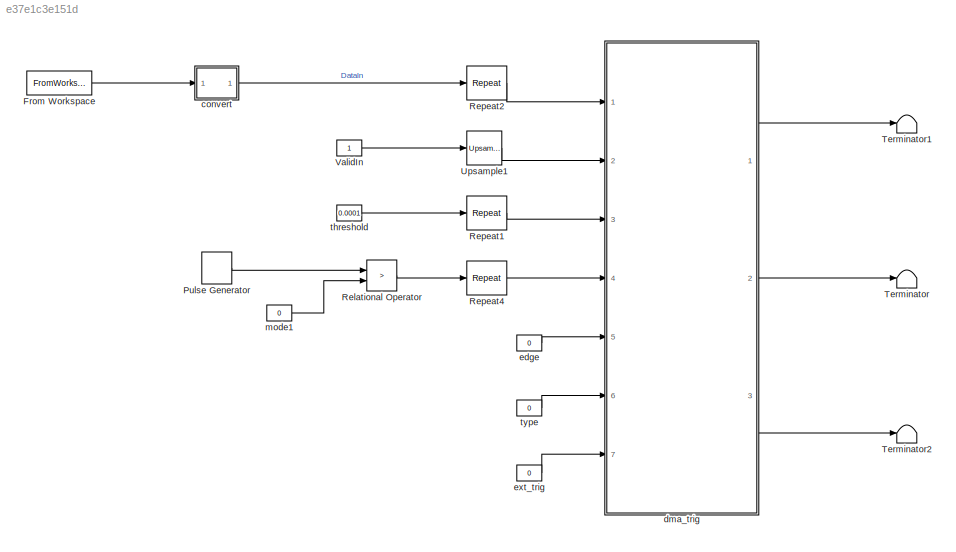
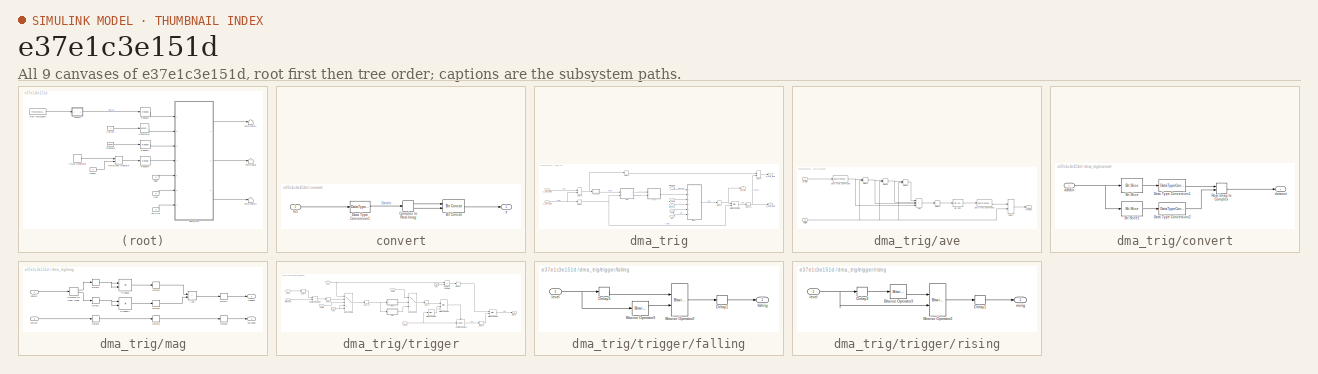
[diagram: thumbnail index - all 9 canvases of the model, root first then tree order]
MODEL slx_e37e1c3e151d
KIND model
CONFIG AbsTol = auto
CONFIG EnableMultiTasking = off
CONFIG FixedStep = auto
CONFIG MaxStep = auto
CONFIG MinStep = auto
CONFIG RelTol = 1e-3
CONFIG SampleTimeConstraint = Unconstrained
CONFIG SolverName = FixedStepDiscrete
CONFIG StartTime = 0.0
CONFIG StopTime = (1/fs)*2457600
WORKSPACE source: mxarray member
WORKSPACE OptOut = 0
BLOCK [FromWorkspace] From Workspace
  SampleTime = 1/fs
  VariableName = simin
BLOCK [DiscretePulseGenerator] Pulse Generator
  Period = 10e3
  PhaseDelay = 50
  Ports = [0, 1]
  PulseWidth = 256
  SampleTime = 1/fs
BLOCK [RelationalOperator] Relational Operator
  InputSameDT = off
  Operator = >
  OutDataTypeStr = boolean
  Ports = [2, 1]
BLOCK [Reference] Repeat1  REF=dspsigops/Repeat
  Ports = [1, 1]
  SourceBlock = dspsigops/Repeat
  SourceProductBaseCode = DS
  SourceType = Repeat
  UserDataPersistent = on
BLOCK [Reference] Repeat2  REF=dspsigops/Repeat
  Ports = [1, 1]
  SourceBlock = dspsigops/Repeat
  SourceProductBaseCode = DS
  SourceType = Repeat
  UserDataPersistent = on
BLOCK [Reference] Repeat4  REF=dspsigops/Repeat
  Ports = [1, 1]
  SourceBlock = dspsigops/Repeat
  SourceProductBaseCode = DS
  SourceType = Repeat
  UserDataPersistent = on
BLOCK [Terminator] Terminator
BLOCK [Terminator] Terminator1
BLOCK [Terminator] Terminator2
BLOCK [Reference] Upsample1  REF=dspsigops/Upsample
  Ports = [1, 1]
  SourceBlock = dspsigops/Upsample
  SourceProductBaseCode = DS
  SourceType = Upsample
  UserDataPersistent = on
BLOCK [Constant] ValidIn
  OutDataTypeStr = boolean
  SampleTime = 1/fs
BLOCK [SubSystem] convert
  Ports = [1, 1]
  RequestExecContextInheritance = off
BLOCK [Reference] convert/Bit Concat  REF=hdlsllib/Logic and Bit
Operations/Bit Concat
  Ports = [2, 1]
  SourceBlock = hdlsllib/Logic and Bit\nOperations/Bit Concat
  SourceProductBaseCode = SL
  SourceType = Bit Concat
BLOCK [ComplexToRealImag] convert/Complex to Real-Imag
  Ports = [1, 2]
BLOCK [DataTypeConversion] convert/Data Type Conversion1
  OutDataTypeStr = fixdt(1,16,15)
  RndMeth = Floor
  SaturateOnIntegerOverflow = off
BLOCK [Inport] convert/In1
BLOCK [Outport] convert/y
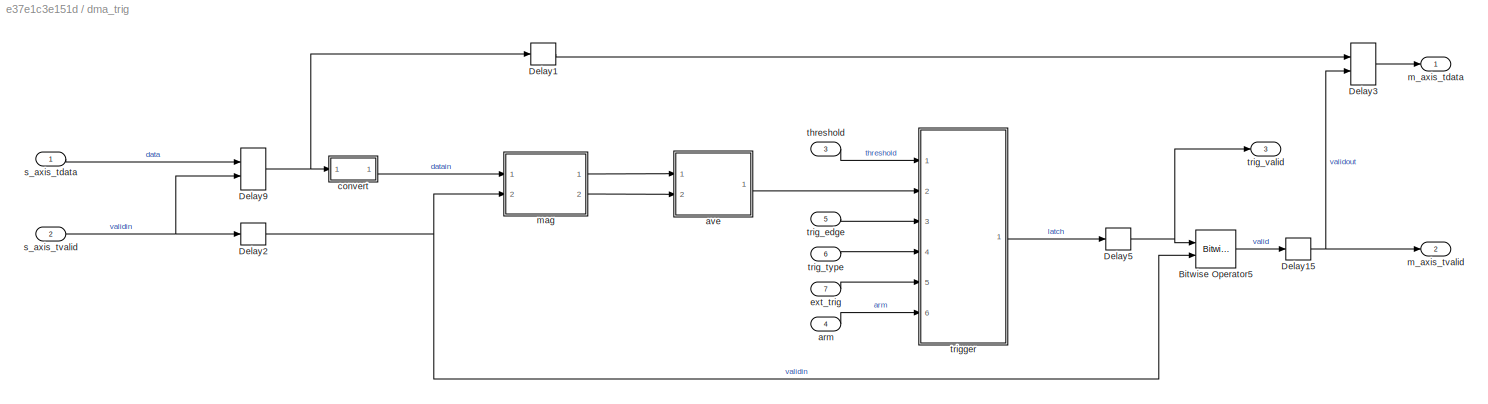
BLOCK [SubSystem] dma_trig
  MinMaxOverflowLogging = MinMaxAndOverflow
  Ports = [7, 3]
  RequestExecContextInheritance = off
  TreatAsAtomicUnit = on
BLOCK [Reference] dma_trig/Bitwise Operator5  REF=simulink/Logic and Bit
Operations/Bitwise
Operator
  Ports = [2, 1]
  SourceBlock = simulink/Logic and Bit\nOperations/Bitwise\nOperator
  SourceProductBaseCode = SL
  SourceType = Bitwise Operator
BLOCK [Delay] dma_trig/Delay1
  DelayLength = 1
  InitialCondition = 0
  InputPortMap = u0
  Ports = [1, 1]
BLOCK [Delay] dma_trig/Delay15
  DelayLength = 1
  InitialCondition = 0
  InputPortMap = u0
  Ports = [1, 1]
BLOCK [Delay] dma_trig/Delay2
  DelayLength = 1
  InitialCondition = 0
  InputPortMap = u0
  Ports = [1, 1]
BLOCK [Delay] dma_trig/Delay3
  DelayLength = 1
  InitialCondition = 0
  InputPortMap = u0,e6
  Ports = [2, 1]
  ShowEnablePort = on
BLOCK [Delay] dma_trig/Delay5
  DelayLength = 1
  InitialCondition = 0
  InputPortMap = u0
  Ports = [1, 1]
BLOCK [Delay] dma_trig/Delay9
  DelayLength = 1
  InitialCondition = 0
  InputPortMap = u0,e6
  Ports = [2, 1]
  ShowEnablePort = on
BLOCK [Inport] dma_trig/arm
  NameLocation = top
  Port = 4
BLOCK [SubSystem] dma_trig/ave
  Ports = [2, 1]
  RequestExecContextInheritance = off
BLOCK [Sum] dma_trig/ave/Add
  IconShape = rectangular
  Inputs = ++++
  Ports = [4, 1]
BLOCK [Reference] dma_trig/ave/Bit Shift  REF=hdlsllib/Logic and Bit
Operations/Bit Shift
  Ports = [1, 1]
  SourceBlock = hdlsllib/Logic and Bit\nOperations/Bit Shift
  SourceProductBaseCode = SL
  SourceType = Bit Shift
BLOCK [DataTypeConversion] dma_trig/ave/Data Type Conversion
  OutDataTypeStr = fixdt(0,32,30)
  RndMeth = Floor
  SaturateOnIntegerOverflow = off
BLOCK [DataTypeConversion] dma_trig/ave/Data Type Conversion1
  OutDataTypeStr = fixdt(0,32,30)
  RndMeth = Floor
  SaturateOnIntegerOverflow = off
BLOCK [Delay] dma_trig/ave/Delay1
  DelayLength = 1
  InitialCondition = 0
  InputPortMap = u0,e6
  Ports = [2, 1]
  ShowEnablePort = on
BLOCK [Delay] dma_trig/ave/Delay2
  DelayLength = 1
  InitialCondition = 0
  InputPortMap = u0,e6
  Ports = [2, 1]
  ShowEnablePort = on
BLOCK [Delay] dma_trig/ave/Delay3
  DelayLength = 1
  InitialCondition = 0
  InputPortMap = u0,e6
  Ports = [2, 1]
  ShowEnablePort = on
BLOCK [Delay] dma_trig/ave/Delay4
  DelayLength = 1
  InitialCondition = 0
  InputPortMap = u0,e6
  Ports = [2, 1]
  ShowEnablePort = on
BLOCK [Delay] dma_trig/ave/Delay6
  DelayLength = 4
  InitialCondition = 0
  InputPortMap = u0
  Ports = [1, 1]
BLOCK [Inport] dma_trig/ave/magin
BLOCK [Outport] dma_trig/ave/magout
BLOCK [Inport] dma_trig/ave/validin
  Port = 2
BLOCK [SubSystem] dma_trig/convert
  Ports = [1, 1]
  RequestExecContextInheritance = off
BLOCK [Reference] dma_trig/convert/Bit Slice  REF=hdlsllib/Logic and Bit
Operations/Bit Slice
  Ports = [1, 1]
  SourceBlock = hdlsllib/Logic and Bit\nOperations/Bit Slice
  SourceProductBaseCode = SL
  SourceType = Bit Slice
BLOCK [Reference] dma_trig/convert/Bit Slice1  REF=hdlsllib/Logic and Bit
Operations/Bit Slice
  Ports = [1, 1]
  SourceBlock = hdlsllib/Logic and Bit\nOperations/Bit Slice
  SourceProductBaseCode = SL
  SourceType = Bit Slice
BLOCK [DataTypeConversion] dma_trig/convert/Data Type Conversion1
  ConvertRealWorld = Stored Integer (SI)
  OutDataTypeStr = fixdt(1,16,15)
  RndMeth = Floor
  SaturateOnIntegerOverflow = off
BLOCK [DataTypeConversion] dma_trig/convert/Data Type Conversion2
  ConvertRealWorld = Stored Integer (SI)
  OutDataTypeStr = fixdt(1,16,15)
  RndMeth = Floor
  SaturateOnIntegerOverflow = off
BLOCK [RealImagToComplex] dma_trig/convert/Real-Imag to Complex
  Ports = [2, 1]
BLOCK [Inport] dma_trig/convert/datain
BLOCK [Outport] dma_trig/convert/dataout
BLOCK [Inport] dma_trig/ext_trig
  NameLocation = top
  Port = 7
BLOCK [Outport] dma_trig/m_axis_tdata
  VectorParamsAs1DForOutWhenUnconnected = off
BLOCK [Outport] dma_trig/m_axis_tvalid
  Port = 2
  VectorParamsAs1DForOutWhenUnconnected = off
BLOCK [SubSystem] dma_trig/mag
  Ports = [2, 2]
  RequestExecContextInheritance = off
BLOCK [Sum] dma_trig/mag/Add
  IconShape = rectangular
  Ports = [2, 1]
BLOCK [ComplexToRealImag] dma_trig/mag/Complex to Real-Imag
  Ports = [1, 2]
BLOCK [Delay] dma_trig/mag/Delay1
  InitialCondition = 0
  InputPortMap = u0
  Ports = [1, 1]
BLOCK [Delay] dma_trig/mag/Delay2
  InitialCondition = 0
  InputPortMap = u0
  Ports = [1, 1]
BLOCK [Delay] dma_trig/mag/Delay3
  InitialCondition = 0
  InputPortMap = u0
  Ports = [1, 1]
BLOCK [Delay] dma_trig/mag/Delay4
  InitialCondition = 0
  InputPortMap = u0
  Ports = [1, 1]
BLOCK [Delay] dma_trig/mag/Delay5
  InitialCondition = 0
  InputPortMap = u0
  Ports = [1, 1]
BLOCK [Delay] dma_trig/mag/Delay6
  InitialCondition = 0
  InputPortMap = u0
  Ports = [1, 1]
BLOCK [Delay] dma_trig/mag/Delay7
  DelayLength = 1
  InitialCondition = 0
  InputPortMap = u0
  Ports = [1, 1]
BLOCK [Delay] dma_trig/mag/Delay8
  DelayLength = 1
  InitialCondition = 0
  InputPortMap = u0
  Ports = [1, 1]
BLOCK [Product] dma_trig/mag/Product
  Ports = [2, 1]
BLOCK [Product] dma_trig/mag/Product1
  Ports = [2, 1]
BLOCK [Inport] dma_trig/mag/datain
BLOCK [Outport] dma_trig/mag/magout
BLOCK [Inport] dma_trig/mag/validin
  Port = 2
BLOCK [Outport] dma_trig/mag/validout
  Port = 2
BLOCK [Inport] dma_trig/s_axis_tdata
  NameLocation = top
  OutDataTypeStr = uint32
BLOCK [Inport] dma_trig/s_axis_tvalid
  NameLocation = top
  Port = 2
BLOCK [Inport] dma_trig/threshold
  NameLocation = top
  Port = 3
BLOCK [Inport] dma_trig/trig_edge
  NameLocation = top
  Port = 5
BLOCK [Inport] dma_trig/trig_type
  NameLocation = top
  Port = 6
BLOCK [Outport] dma_trig/trig_valid
  Port = 3
  VectorParamsAs1DForOutWhenUnconnected = off
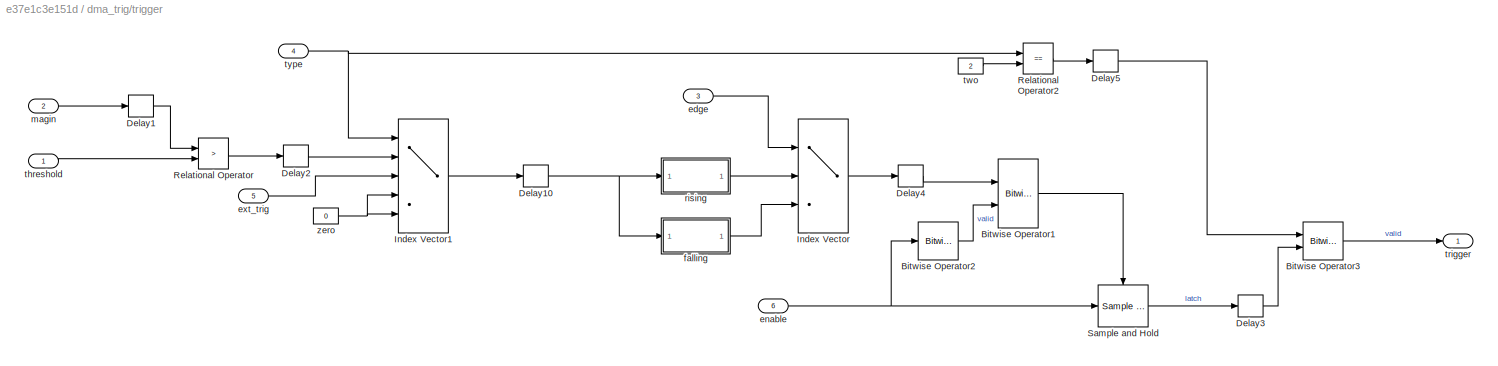
BLOCK [SubSystem] dma_trig/trigger
  Ports = [6, 1]
  RequestExecContextInheritance = off
BLOCK [Reference] dma_trig/trigger/Bitwise Operator1  REF=simulink/Logic and Bit
Operations/Bitwise
Operator
  Ports = [2, 1]
  SourceBlock = simulink/Logic and Bit\nOperations/Bitwise\nOperator
  SourceProductBaseCode = SL
  SourceType = Bitwise Operator
BLOCK [Reference] dma_trig/trigger/Bitwise Operator2  REF=simulink/Logic and Bit
Operations/Bitwise
Operator
  Ports = [1, 1]
  SourceBlock = simulink/Logic and Bit\nOperations/Bitwise\nOperator
  SourceProductBaseCode = SL
  SourceType = Bitwise Operator
BLOCK [Reference] dma_trig/trigger/Bitwise Operator3  REF=simulink/Logic and Bit
Operations/Bitwise
Operator
  Ports = [2, 1]
  SourceBlock = simulink/Logic and Bit\nOperations/Bitwise\nOperator
  SourceProductBaseCode = SL
  SourceType = Bitwise Operator
BLOCK [Delay] dma_trig/trigger/Delay1
  DelayLength = 1
  InitialCondition = 0
  InputPortMap = u0
  Ports = [1, 1]
BLOCK [Delay] dma_trig/trigger/Delay10
  DelayLength = 1
  InitialCondition = 0
  InputPortMap = u0
  Ports = [1, 1]
BLOCK [Delay] dma_trig/trigger/Delay2
  DelayLength = 1
  InitialCondition = 0
  InputPortMap = u0
  Ports = [1, 1]
BLOCK [Delay] dma_trig/trigger/Delay3
  DelayLength = 1
  InitialCondition = 0
  InputPortMap = u0
  Ports = [1, 1]
BLOCK [Delay] dma_trig/trigger/Delay4
  DelayLength = 1
  InitialCondition = 0
  InputPortMap = u0
  Ports = [1, 1]
BLOCK [Delay] dma_trig/trigger/Delay5
  DelayLength = 1
  InitialCondition = 0
  InputPortMap = u0
  Ports = [1, 1]
BLOCK [MultiPortSwitch] dma_trig/trigger/Index Vector
  DataPortOrder = Zero-based contiguous
  InputSameDT = off
  Inputs = 2
  Ports = [3, 1]
  SaturateOnIntegerOverflow = off
  zeroidx = on
BLOCK [MultiPortSwitch] dma_trig/trigger/Index Vector1
  DataPortOrder = Zero-based contiguous
  InputSameDT = off
  Inputs = 4
  Ports = [5, 1]
  SaturateOnIntegerOverflow = off
  zeroidx = on
BLOCK [RelationalOperator] dma_trig/trigger/Relational Operator
  InputSameDT = off
  Operator = >
  OutDataTypeStr = boolean
  Ports = [2, 1]
BLOCK [RelationalOperator] dma_trig/trigger/Relational Operator2
  InputSameDT = off
  Operator = ==
  OutDataTypeStr = boolean
  Ports = [2, 1]
BLOCK [Reference] dma_trig/trigger/Sample and Hold  REF=dspsigops/Sample
and Hold
  Ports = [1, 1, 0, 1]
  SourceBlock = dspsigops/Sample\nand Hold
  SourceProductBaseCode = DS
  SourceType = Sample and Hold
BLOCK [Inport] dma_trig/trigger/edge
  Port = 3
BLOCK [Inport] dma_trig/trigger/enable
  Port = 6
BLOCK [Inport] dma_trig/trigger/ext_trig
  Port = 5
BLOCK [SubSystem] dma_trig/trigger/falling
  Ports = [1, 1]
  RequestExecContextInheritance = off
BLOCK [Reference] dma_trig/trigger/falling/Bitwise Operator2  REF=simulink/Logic and Bit
Operations/Bitwise
Operator
  Ports = [2, 1]
  SourceBlock = simulink/Logic and Bit\nOperations/Bitwise\nOperator
  SourceProductBaseCode = SL
  SourceType = Bitwise Operator
BLOCK [Reference] dma_trig/trigger/falling/Bitwise Operator3  REF=simulink/Logic and Bit
Operations/Bitwise
Operator
  Ports = [1, 1]
  SourceBlock = simulink/Logic and Bit\nOperations/Bitwise\nOperator
  SourceProductBaseCode = SL
  SourceType = Bitwise Operator
BLOCK [Delay] dma_trig/trigger/falling/Delay1
  DelayLength = 1
  InitialCondition = 0
  InputPortMap = u0
  Ports = [1, 1]
BLOCK [Delay] dma_trig/trigger/falling/Delay3
  DelayLength = 1
  InitialCondition = 0
  InputPortMap = u0
  Ports = [1, 1]
BLOCK [Outport] dma_trig/trigger/falling/falling
BLOCK [Inport] dma_trig/trigger/falling/level
BLOCK [Inport] dma_trig/trigger/magin
  Port = 2
BLOCK [SubSystem] dma_trig/trigger/rising
  Ports = [1, 1]
  RequestExecContextInheritance = off
BLOCK [Reference] dma_trig/trigger/rising/Bitwise Operator2  REF=simulink/Logic and Bit
Operations/Bitwise
Operator
  Ports = [2, 1]
  SourceBlock = simulink/Logic and Bit\nOperations/Bitwise\nOperator
  SourceProductBaseCode = SL
  SourceType = Bitwise Operator
BLOCK [Reference] dma_trig/trigger/rising/Bitwise Operator3  REF=simulink/Logic and Bit
Operations/Bitwise
Operator
  Ports = [1, 1]
  SourceBlock = simulink/Logic and Bit\nOperations/Bitwise\nOperator
  SourceProductBaseCode = SL
  SourceType = Bitwise Operator
BLOCK [Delay] dma_trig/trigger/rising/Delay1
  DelayLength = 1
  InitialCondition = 0
  InputPortMap = u0
  Ports = [1, 1]
BLOCK [Delay] dma_trig/trigger/rising/Delay3
  DelayLength = 1
  InitialCondition = 0
  InputPortMap = u0
  Ports = [1, 1]
BLOCK [Inport] dma_trig/trigger/rising/level
BLOCK [Outport] dma_trig/trigger/rising/rising
BLOCK [Inport] dma_trig/trigger/threshold
BLOCK [Outport] dma_trig/trigger/trigger
BLOCK [Constant] dma_trig/trigger/two
  OutDataTypeStr = fixdt(0,2,0)
  SampleTime = -1
  Value = 2
BLOCK [Inport] dma_trig/trigger/type
  Port = 4
BLOCK [Constant] dma_trig/trigger/zero
  OutDataTypeStr = fixdt(0,2,0)
  SampleTime = -1
  Value = 0
BLOCK [Constant] edge
  OutDataTypeStr = fixdt(0,1,0)
  SampleTime = 1/clk
  Value = 0
BLOCK [Constant] ext_trig
  OutDataTypeStr = boolean
  SampleTime = 1/clk
  Value = 0
BLOCK [Constant] mode1
  SampleTime = 1/fs
  Value = 0
BLOCK [Constant] threshold
  OutDataTypeStr = fixdt(0,32,30)
  SampleTime = 1/fs
  Value = 0.0001
BLOCK [Constant] type
  OutDataTypeStr = fixdt(0,2,0)
  SampleTime = 1/clk
  Value = 0
LINE From Workspace:1 -> convert:1
LINE Pulse Generator:1 -> Relational Operator:1
LINE Relational Operator:1 -> Repeat4:1
LINE Repeat1:1 -> dma_trig:3
LINE Repeat2:1 -> dma_trig:1
LINE Repeat4:1 -> dma_trig:4
LINE Upsample1:1 -> dma_trig:2
LINE ValidIn:1 -> Upsample1:1
LINE convert/Bit Concat:1 -> convert/y:1
LINE convert/Complex to Real-Imag:1 -> convert/Bit Concat:1
LINE convert/Complex to Real-Imag:2 -> convert/Bit Concat:2
LINE convert/Data Type Conversion1:1 -> convert/Complex to Real-Imag:1
LINE convert/In1:1 -> convert/Data Type Conversion1:1
LINE convert:1 -> Repeat2:1
LINE dma_trig/Bitwise Operator5:1 -> dma_trig/Delay15:1
NET dma_trig/Delay15:1 -> dma_trig/Delay3:2, dma_trig/m_axis_tvalid:1
LINE dma_trig/Delay1:1 -> dma_trig/Delay3:1
NET dma_trig/Delay2:1 -> dma_trig/Bitwise Operator5:2, dma_trig/mag:2
LINE dma_trig/Delay3:1 -> dma_trig/m_axis_tdata:1
NET dma_trig/Delay5:1 -> dma_trig/Bitwise Operator5:1, dma_trig/trig_valid:1
NET dma_trig/Delay9:1 -> dma_trig/Delay1:1, dma_trig/convert:1
LINE dma_trig/arm:1 -> dma_trig/trigger:6
LINE dma_trig/ave/Add:1 -> dma_trig/ave/Delay6:1
LINE dma_trig/ave/Bit Shift:1 -> dma_trig/ave/Data Type Conversion1:1
LINE dma_trig/ave/Data Type Conversion1:1 -> dma_trig/ave/Delay1:1
NET dma_trig/ave/Data Type Conversion:1 -> dma_trig/ave/Add:4, dma_trig/ave/Delay2:1
LINE dma_trig/ave/Delay1:1 -> dma_trig/ave/magout:1
NET dma_trig/ave/Delay2:1 -> dma_trig/ave/Add:3, dma_trig/ave/Delay3:1
NET dma_trig/ave/Delay3:1 -> dma_trig/ave/Add:2, dma_trig/ave/Delay4:1
LINE dma_trig/ave/Delay4:1 -> dma_trig/ave/Add:1
LINE dma_trig/ave/Delay6:1 -> dma_trig/ave/Bit Shift:1
LINE dma_trig/ave/magin:1 -> dma_trig/ave/Data Type Conversion:1
NET dma_trig/ave/validin:1 -> dma_trig/ave/Delay1:2, dma_trig/ave/Delay2:2, dma_trig/ave/Delay3:2, dma_trig/ave/Delay4:2
LINE dma_trig/ave:1 -> dma_trig/trigger:2
LINE dma_trig/convert/Bit Slice1:1 -> dma_trig/convert/Data Type Conversion2:1
LINE dma_trig/convert/Bit Slice:1 -> dma_trig/convert/Data Type Conversion1:1
LINE dma_trig/convert/Data Type Conversion1:1 -> dma_trig/convert/Real-Imag to Complex:1
LINE dma_trig/convert/Data Type Conversion2:1 -> dma_trig/convert/Real-Imag to Complex:2
LINE dma_trig/convert/Real-Imag to Complex:1 -> dma_trig/convert/dataout:1
NET dma_trig/convert/datain:1 -> dma_trig/convert/Bit Slice1:1, dma_trig/convert/Bit Slice:1
LINE dma_trig/convert:1 -> dma_trig/mag:1
LINE dma_trig/ext_trig:1 -> dma_trig/trigger:5
LINE dma_trig/mag/Add:1 -> dma_trig/mag/Delay7:1
LINE dma_trig/mag/Complex to Real-Imag:1 -> dma_trig/mag/Delay4:1
LINE dma_trig/mag/Complex to Real-Imag:2 -> dma_trig/mag/Delay1:1
NET dma_trig/mag/Delay1:1 -> dma_trig/mag/Product1:1, dma_trig/mag/Product1:2
LINE dma_trig/mag/Delay2:1 -> dma_trig/mag/Delay6:1
LINE dma_trig/mag/Delay3:1 -> dma_trig/mag/Add:1
NET dma_trig/mag/Delay4:1 -> dma_trig/mag/Product:1, dma_trig/mag/Product:2
LINE dma_trig/mag/Delay5:1 -> dma_trig/mag/Add:2
LINE dma_trig/mag/Delay6:1 -> dma_trig/mag/Delay8:1
LINE dma_trig/mag/Delay7:1 -> dma_trig/mag/magout:1
LINE dma_trig/mag/Delay8:1 -> dma_trig/mag/validout:1
LINE dma_trig/mag/Product1:1 -> dma_trig/mag/Delay5:1
LINE dma_trig/mag/Product:1 -> dma_trig/mag/Delay3:1
LINE dma_trig/mag/datain:1 -> dma_trig/mag/Complex to Real-Imag:1
LINE dma_trig/mag/validin:1 -> dma_trig/mag/Delay2:1
LINE dma_trig/mag:1 -> dma_trig/ave:1
LINE dma_trig/mag:2 -> dma_trig/ave:2
LINE dma_trig/s_axis_tdata:1 -> dma_trig/Delay9:1
NET dma_trig/s_axis_tvalid:1 -> dma_trig/Delay2:1, dma_trig/Delay9:2
LINE dma_trig/threshold:1 -> dma_trig/trigger:1
LINE dma_trig/trig_edge:1 -> dma_trig/trigger:3
LINE dma_trig/trig_type:1 -> dma_trig/trigger:4
LINE dma_trig/trigger/Bitwise Operator1:1 -> dma_trig/trigger/Sample and Hold:trigger
LINE dma_trig/trigger/Bitwise Operator2:1 -> dma_trig/trigger/Bitwise Operator1:2
LINE dma_trig/trigger/Bitwise Operator3:1 -> dma_trig/trigger/trigger:1
NET dma_trig/trigger/Delay10:1 -> dma_trig/trigger/falling:1, dma_trig/trigger/rising:1
LINE dma_trig/trigger/Delay1:1 -> dma_trig/trigger/Relational Operator:1
LINE dma_trig/trigger/Delay2:1 -> dma_trig/trigger/Index Vector1:2
LINE dma_trig/trigger/Delay3:1 -> dma_trig/trigger/Bitwise Operator3:2
LINE dma_trig/trigger/Delay4:1 -> dma_trig/trigger/Bitwise Operator1:1
LINE dma_trig/trigger/Delay5:1 -> dma_trig/trigger/Bitwise Operator3:1
LINE dma_trig/trigger/Index Vector1:1 -> dma_trig/trigger/Delay10:1
LINE dma_trig/trigger/Index Vector:1 -> dma_trig/trigger/Delay4:1
LINE dma_trig/trigger/Relational Operator2:1 -> dma_trig/trigger/Delay5:1
LINE dma_trig/trigger/Relational Operator:1 -> dma_trig/trigger/Delay2:1
LINE dma_trig/trigger/Sample and Hold:1 -> dma_trig/trigger/Delay3:1
LINE dma_trig/trigger/edge:1 -> dma_trig/trigger/Index Vector:1
NET dma_trig/trigger/enable:1 -> dma_trig/trigger/Bitwise Operator2:1, dma_trig/trigger/Sample and Hold:1
LINE dma_trig/trigger/ext_trig:1 -> dma_trig/trigger/Index Vector1:3
LINE dma_trig/trigger/falling/Bitwise Operator2:1 -> dma_trig/trigger/falling/Delay1:1
LINE dma_trig/trigger/falling/Bitwise Operator3:1 -> dma_trig/trigger/falling/Bitwise Operator2:2
LINE dma_trig/trigger/falling/Delay1:1 -> dma_trig/trigger/falling/falling:1
LINE dma_trig/trigger/falling/Delay3:1 -> dma_trig/trigger/falling/Bitwise Operator2:1
NET dma_trig/trigger/falling/level:1 -> dma_trig/trigger/falling/Bitwise Operator3:1, dma_trig/trigger/falling/Delay3:1
LINE dma_trig/trigger/falling:1 -> dma_trig/trigger/Index Vector:3
LINE dma_trig/trigger/magin:1 -> dma_trig/trigger/Delay1:1
LINE dma_trig/trigger/rising/Bitwise Operator2:1 -> dma_trig/trigger/rising/Delay1:1
LINE dma_trig/trigger/rising/Bitwise Operator3:1 -> dma_trig/trigger/rising/Bitwise Operator2:1
LINE dma_trig/trigger/rising/Delay1:1 -> dma_trig/trigger/rising/rising:1
LINE dma_trig/trigger/rising/Delay3:1 -> dma_trig/trigger/rising/Bitwise Operator3:1
NET dma_trig/trigger/rising/level:1 -> dma_trig/trigger/rising/Bitwise Operator2:2, dma_trig/trigger/rising/Delay3:1
LINE dma_trig/trigger/rising:1 -> dma_trig/trigger/Index Vector:2
LINE dma_trig/trigger/threshold:1 -> dma_trig/trigger/Relational Operator:2
LINE dma_trig/trigger/two:1 -> dma_trig/trigger/Relational Operator2:2
NET dma_trig/trigger/type:1 -> dma_trig/trigger/Index Vector1:1, dma_trig/trigger/Relational Operator2:1
NET dma_trig/trigger/zero:1 -> dma_trig/trigger/Index Vector1:4, dma_trig/trigger/Index Vector1:5
LINE dma_trig/trigger:1 -> dma_trig/Delay5:1
LINE dma_trig:1 -> Terminator1:1
LINE dma_trig:2 -> Terminator:1
LINE dma_trig:3 -> Terminator2:1
LINE edge:1 -> dma_trig:5
LINE ext_trig:1 -> dma_trig:7
LINE mode1:1 -> Relational Operator:2
LINE threshold:1 -> Repeat1:1
LINE type:1 -> dma_trig:6
note: NET lines group one-source signal fan-out (src -> all destinations, sorted); 1:1 wires keep LINE
